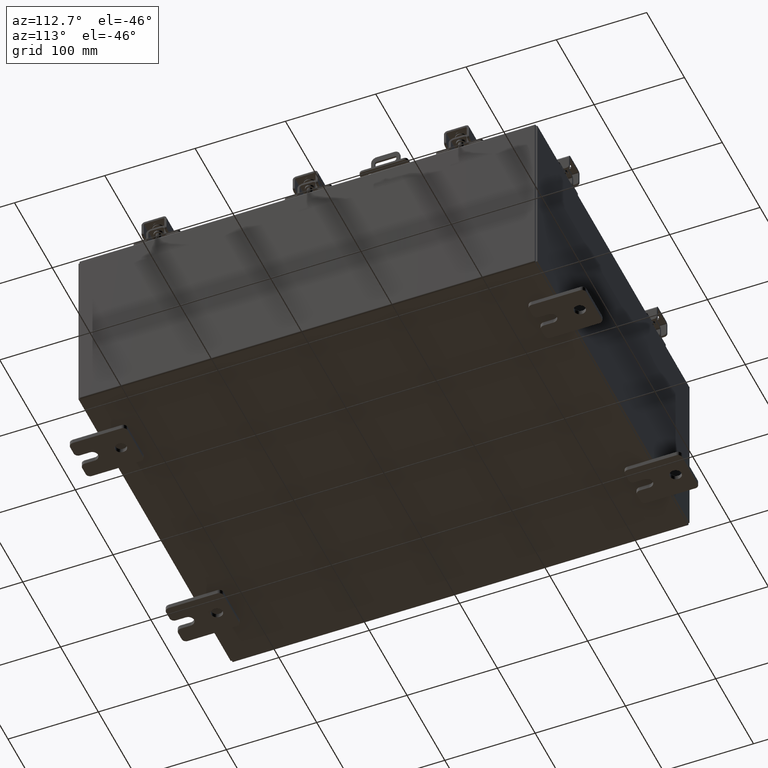
[diagram: clean part render]
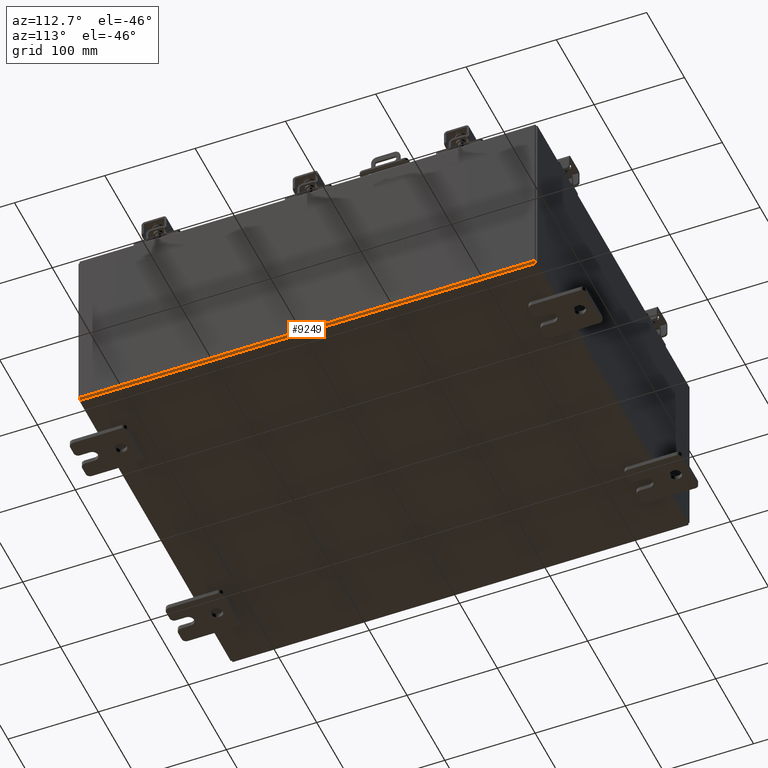
[diagram: same view with one face highlighted and labeled with its STEP entity id]
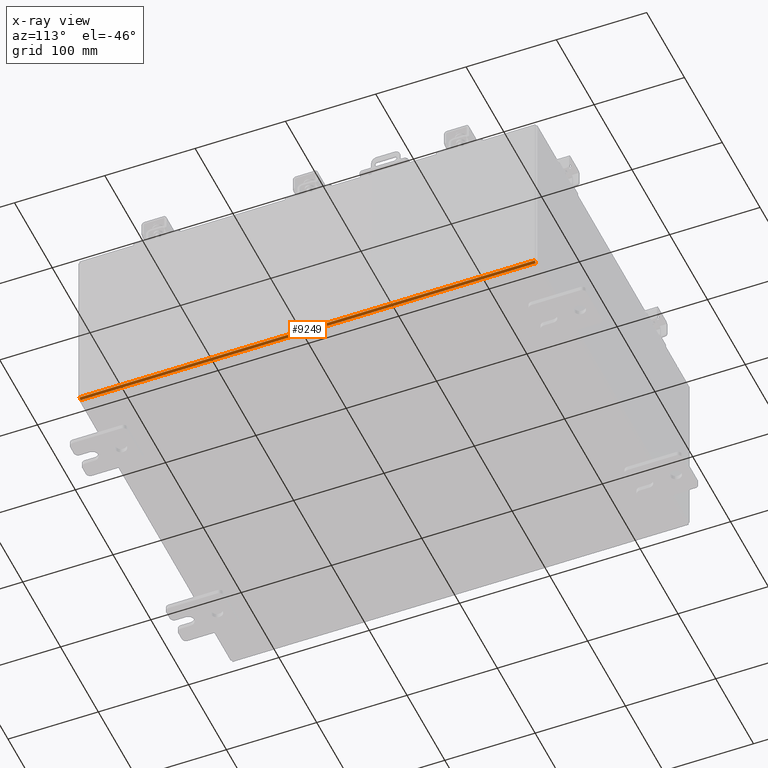
[diagram: x-ray of the same camera — body ghosted, the highlighted face saturated]
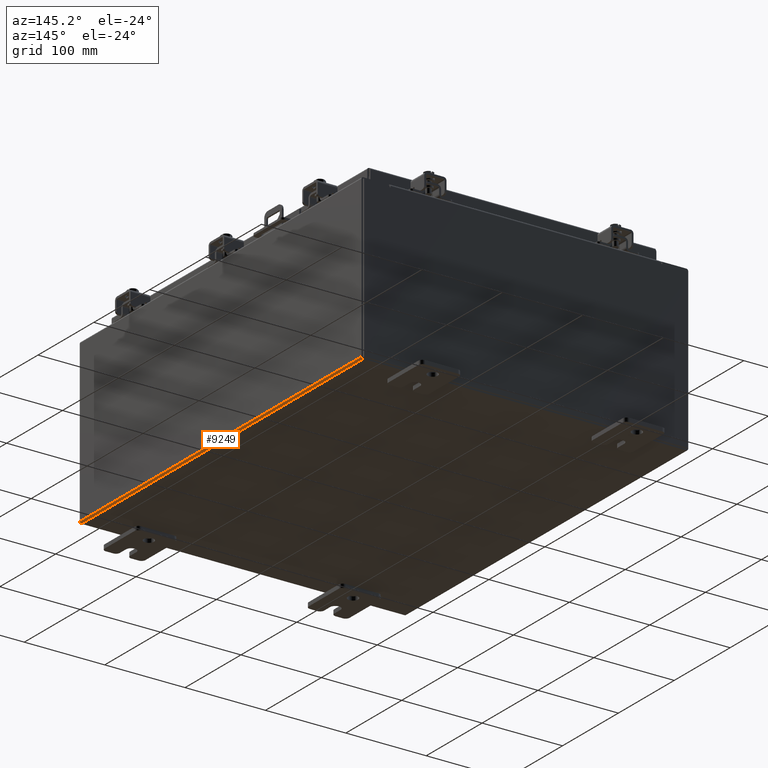
[diagram: same view with one face highlighted and labeled with its STEP entity id]
A machine part, auxiliary view. The second image highlights one B-rep face of the part: STEP entity #9249.
The next image is the same camera in x-ray: the body ghosted, the highlighted face saturated — about 0% of this face is hidden behind the body in this view.
A second angle (auxiliary view) of the same face is appended — the face is thin or edge-on in the first view.
In plain terms, the highlighted cylindrical surface (edge-blend (fillet) strip) has radius 2.2276 mm, axis along (0, 1, 0).
Its self-contained STEP definition (entity closure, byte-faithful):
#142 = CARTESIAN_POINT ( 'NONE',  ( 7.912300000000001900, 9.925299999999998200, -0.07469999999999996100 ) ) ;
#310 = FACE_OUTER_BOUND ( 'NONE', #2041, .T. ) ;
#1727 = EDGE_CURVE ( 'NONE', #14615, #6097, #21843, .T. ) ;
#2041 = EDGE_LOOP ( 'NONE', ( #10831, #19240, #12385, #5195 ) ) ;
#2662 = CIRCLE ( 'NONE', #5505, 0.08770000000000009700 ) ;
#2950 = CARTESIAN_POINT ( 'NONE',  ( 7.912300000000001900, 9.925299999999998200, 0.01300000000000015000 ) ) ;
#5128 = DIRECTION ( 'NONE',  ( -0.0000000000000000000, -1.000000000000000000, -0.0000000000000000000 ) ) ;
#5195 = ORIENTED_EDGE ( 'NONE', *, *, #11784, .F. ) ;
#5505 = AXIS2_PLACEMENT_3D ( 'NONE', #15550, #5128, #17293 ) ;
#5591 = EDGE_CURVE ( 'NONE', #6097, #16952, #8304, .T. ) ;
#6097 = VERTEX_POINT ( 'NONE', #10261 ) ;
#6570 = CARTESIAN_POINT ( 'NONE',  ( 8.000000000000001800, -9.925300000000001800, 0.01299999999999985200 ) ) ;
#8304 = LINE ( 'NONE', #142, #17566 ) ;
#8443 = VERTEX_POINT ( 'NONE', #14867 ) ;
#8641 = EDGE_CURVE ( 'NONE', #14615, #8443, #13892, .T. ) ;
#8820 = DIRECTION ( 'NONE',  ( 0.0000000000000000000, 1.000000000000000000, 0.0000000000000000000 ) ) ;
#8997 = CYLINDRICAL_SURFACE ( 'NONE', #14064, 0.08770000000000026400 ) ;
#9249 = ADVANCED_FACE ( 'NONE', ( #310 ), #8997, .T. ) ;
#9255 = VECTOR ( 'NONE', #11802, 39.37007874015748100 ) ;
#9829 = DIRECTION ( 'NONE',  ( 0.0000000000000000000, 0.0000000000000000000, 1.000000000000000000 ) ) ;
#9897 = CARTESIAN_POINT ( 'NONE',  ( 8.000000000000001800, 9.925299999999996500, 0.01299999999999985200 ) ) ;
#9900 = CARTESIAN_POINT ( 'NONE',  ( 7.912300000000001900, 9.925299999999996500, 0.01300000000000015000 ) ) ;
#10261 = CARTESIAN_POINT ( 'NONE',  ( 7.912300000000001900, 9.925299999999996500, -0.07469999999999996100 ) ) ;
#10550 = DIRECTION ( 'NONE',  ( -0.0000000000000000000, -1.000000000000000000, -0.0000000000000000000 ) ) ;
#10831 = ORIENTED_EDGE ( 'NONE', *, *, #5591, .F. ) ;
#11617 = DIRECTION ( 'NONE',  ( 1.000000000000000000, 0.0000000000000000000, -3.455694262224952200E-015 ) ) ;
#11784 = EDGE_CURVE ( 'NONE', #16952, #8443, #2662, .T. ) ;
#11802 = DIRECTION ( 'NONE',  ( -0.0000000000000000000, -1.000000000000000000, -0.0000000000000000000 ) ) ;
#12385 = ORIENTED_EDGE ( 'NONE', *, *, #8641, .T. ) ;
#13892 = LINE ( 'NONE', #6570, #9255 ) ;
#14064 = AXIS2_PLACEMENT_3D ( 'NONE', #2950, #22131, #11617 ) ;
#14615 = VERTEX_POINT ( 'NONE', #9897 ) ;
#14867 = CARTESIAN_POINT ( 'NONE',  ( 8.000000000000001800, -9.925300000000001800, 0.01299999999999985200 ) ) ;
#15235 = AXIS2_PLACEMENT_3D ( 'NONE', #9900, #8820, #9829 ) ;
#15550 = CARTESIAN_POINT ( 'NONE',  ( 7.912300000000001900, -9.925300000000001800, 0.01300000000000015000 ) ) ;
#16952 = VERTEX_POINT ( 'NONE', #18472 ) ;
#17293 = DIRECTION ( 'NONE',  ( 0.0000000000000000000, 0.0000000000000000000, 1.000000000000000000 ) ) ;
#17566 = VECTOR ( 'NONE', #10550, 39.37007874015748100 ) ;
#18472 = CARTESIAN_POINT ( 'NONE',  ( 7.912300000000001900, -9.925300000000001800, -0.07469999999999998900 ) ) ;
#19240 = ORIENTED_EDGE ( 'NONE', *, *, #1727, .F. ) ;
#21843 = CIRCLE ( 'NONE', #15235, 0.08770000000000009700 ) ;
#22131 = DIRECTION ( 'NONE',  ( 0.0000000000000000000, 1.000000000000000000, 0.0000000000000000000 ) ) ;